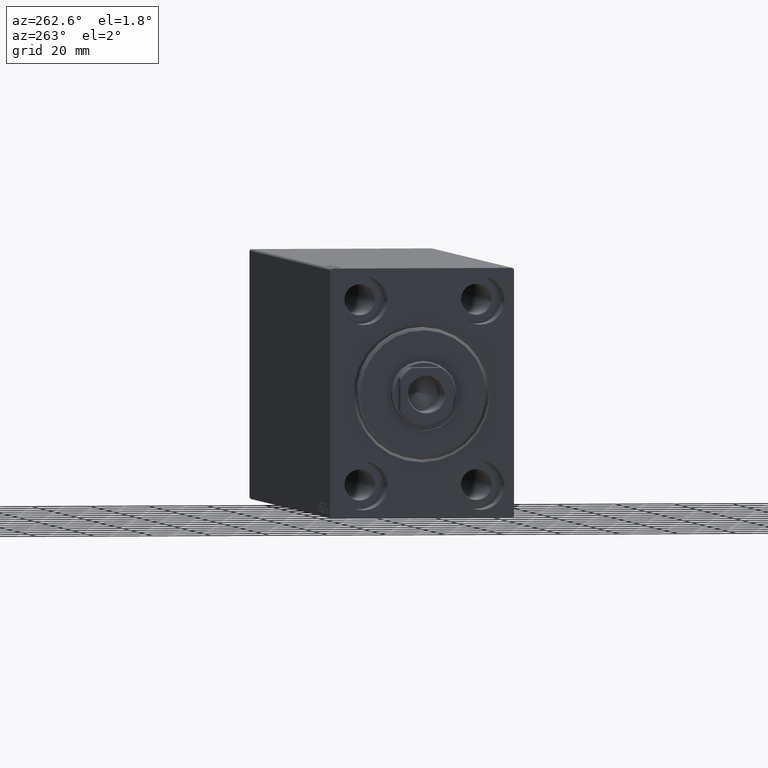
[diagram: clean part render]
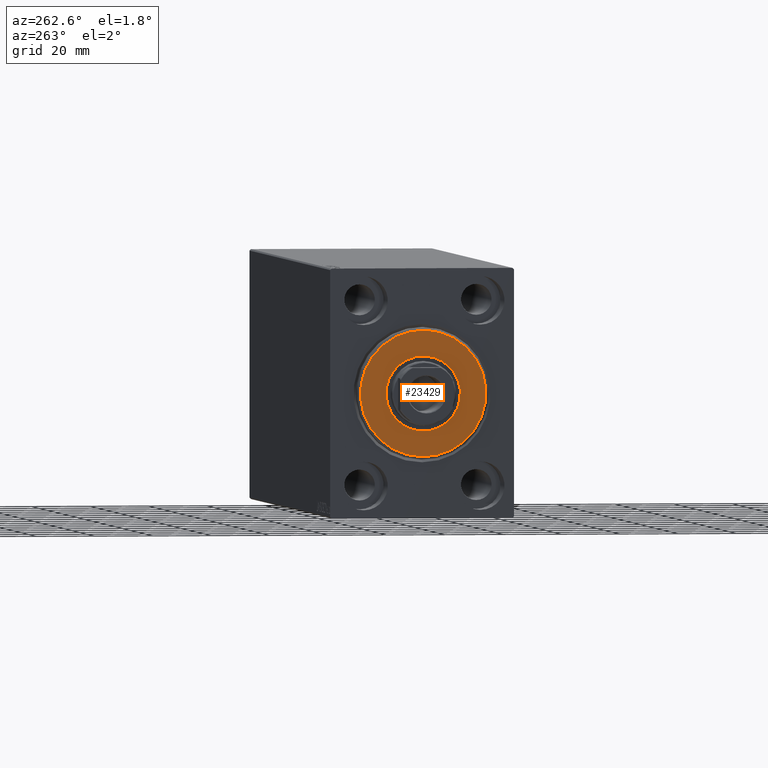
[diagram: same view with one face highlighted and labeled with its STEP entity id]
A machine part, auxiliary view. The second image highlights one B-rep face of the part: STEP entity #23429.
In plain terms, the highlighted planar face has unit normal (-1, 0, 0).
Its self-contained STEP definition (entity closure, byte-faithful):
#1140 = ORIENTED_EDGE ( 'NONE', *, *, #12582, .T. ) ;
#2319 = DIRECTION ( 'NONE',  ( 0.000000000000000000, 0.000000000000000000, -1.000000000000000000 ) ) ;
#3178 = CARTESIAN_POINT ( 'NONE',  ( 3.000000000000000000, 1.561424668912874914E-15, -12.75000000000000000 ) ) ;
#4372 = DIRECTION ( 'NONE',  ( 1.000000000000000000, -0.000000000000000000, 0.000000000000000000 ) ) ;
#5175 = CARTESIAN_POINT ( 'NONE',  ( 3.000000000000000000, 0.000000000000000000, 0.000000000000000000 ) ) ;
#6122 = EDGE_CURVE ( 'NONE', #12155, #9367, #8572, .T. ) ;
#6594 = CIRCLE ( 'NONE', #41189, 21.50000000000000355 ) ;
#7415 = AXIS2_PLACEMENT_3D ( 'NONE', #18087, #4372, #31998 ) ;
#7430 = CARTESIAN_POINT ( 'NONE',  ( 3.000000000000000000, 0.000000000000000000, 21.50000000000000355 ) ) ;
#8424 = EDGE_LOOP ( 'NONE', ( #1140, #36950 ) ) ;
#8572 = CIRCLE ( 'NONE', #19869, 12.75000000000000000 ) ;
#9234 = CIRCLE ( 'NONE', #13470, 12.75000000000000000 ) ;
#9367 = VERTEX_POINT ( 'NONE', #17879 ) ;
#10803 = FACE_BOUND ( 'NONE', #27207, .T. ) ;
#12047 = DIRECTION ( 'NONE',  ( -1.000000000000000000, 0.000000000000000000, -0.000000000000000000 ) ) ;
#12075 = CARTESIAN_POINT ( 'NONE',  ( 3.000000000000000000, 0.000000000000000000, 0.000000000000000000 ) ) ;
#12155 = VERTEX_POINT ( 'NONE', #3178 ) ;
#12582 = EDGE_CURVE ( 'NONE', #35993, #27447, #6594, .T. ) ;
#13470 = AXIS2_PLACEMENT_3D ( 'NONE', #38091, #17995, #30804 ) ;
#13672 = ORIENTED_EDGE ( 'NONE', *, *, #36299, .T. ) ;
#17879 = CARTESIAN_POINT ( 'NONE',  ( 3.000000000000000000, 0.000000000000000000, 12.75000000000000000 ) ) ;
#17995 = DIRECTION ( 'NONE',  ( -1.000000000000000000, 0.000000000000000000, -0.000000000000000000 ) ) ;
#18087 = CARTESIAN_POINT ( 'NONE',  ( 3.000000000000000000, 0.000000000000000000, 0.000000000000000000 ) ) ;
#18816 = ORIENTED_EDGE ( 'NONE', *, *, #6122, .T. ) ;
#19675 = DIRECTION ( 'NONE',  ( 1.000000000000000000, -0.000000000000000000, 0.000000000000000000 ) ) ;
#19869 = AXIS2_PLACEMENT_3D ( 'NONE', #5175, #12047, #25091 ) ;
#20479 = EDGE_CURVE ( 'NONE', #27447, #35993, #40521, .T. ) ;
#22660 = DIRECTION ( 'NONE',  ( 1.000000000000000000, -0.000000000000000000, 0.000000000000000000 ) ) ;
#22989 = CARTESIAN_POINT ( 'NONE',  ( 3.000000000000000000, 0.000000000000000000, 0.000000000000000000 ) ) ;
#23429 = ADVANCED_FACE ( 'NONE', ( #31118, #10803 ), #34652, .T. ) ;
#25091 = DIRECTION ( 'NONE',  ( 0.000000000000000000, 0.000000000000000000, -1.000000000000000000 ) ) ;
#25403 = CARTESIAN_POINT ( 'NONE',  ( 3.000000000000000000, 2.694222958124177598E-15, -21.50000000000000355 ) ) ;
#27207 = EDGE_LOOP ( 'NONE', ( #13672, #18816 ) ) ;
#27447 = VERTEX_POINT ( 'NONE', #25403 ) ;
#27844 = AXIS2_PLACEMENT_3D ( 'NONE', #12075, #22660, #2319 ) ;
#30804 = DIRECTION ( 'NONE',  ( 0.000000000000000000, 0.000000000000000000, -1.000000000000000000 ) ) ;
#31118 = FACE_OUTER_BOUND ( 'NONE', #8424, .T. ) ;
#31998 = DIRECTION ( 'NONE',  ( 0.000000000000000000, 0.000000000000000000, -1.000000000000000000 ) ) ;
#33148 = DIRECTION ( 'NONE',  ( 0.000000000000000000, 0.000000000000000000, -1.000000000000000000 ) ) ;
#34652 = PLANE ( 'NONE',  #7415 ) ;
#35993 = VERTEX_POINT ( 'NONE', #7430 ) ;
#36299 = EDGE_CURVE ( 'NONE', #9367, #12155, #9234, .T. ) ;
#36950 = ORIENTED_EDGE ( 'NONE', *, *, #20479, .T. ) ;
#38091 = CARTESIAN_POINT ( 'NONE',  ( 3.000000000000000000, 0.000000000000000000, 0.000000000000000000 ) ) ;
#40521 = CIRCLE ( 'NONE', #27844, 21.50000000000000355 ) ;
#41189 = AXIS2_PLACEMENT_3D ( 'NONE', #22989, #19675, #33148 ) ;